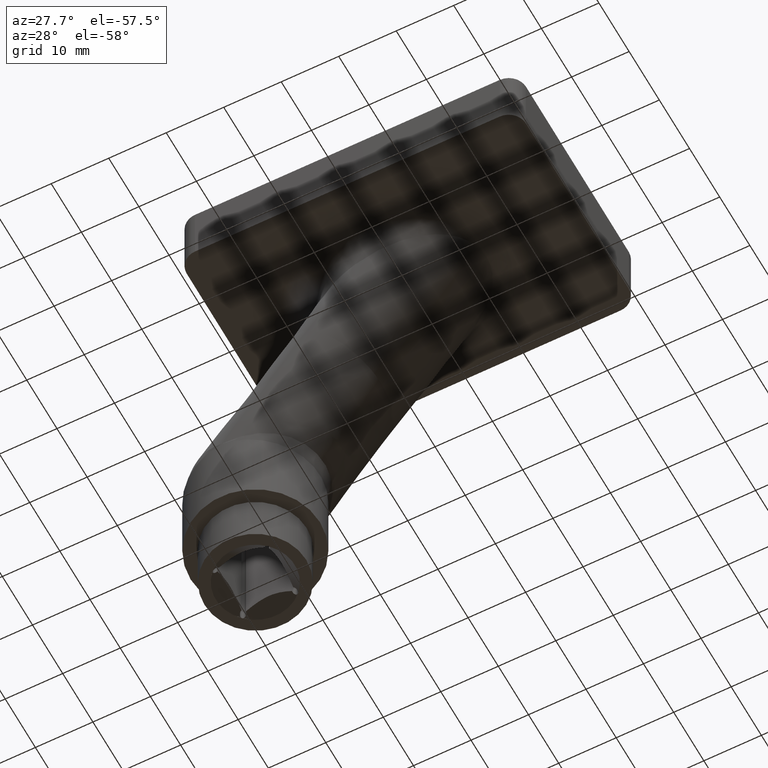
[diagram: clean part render]
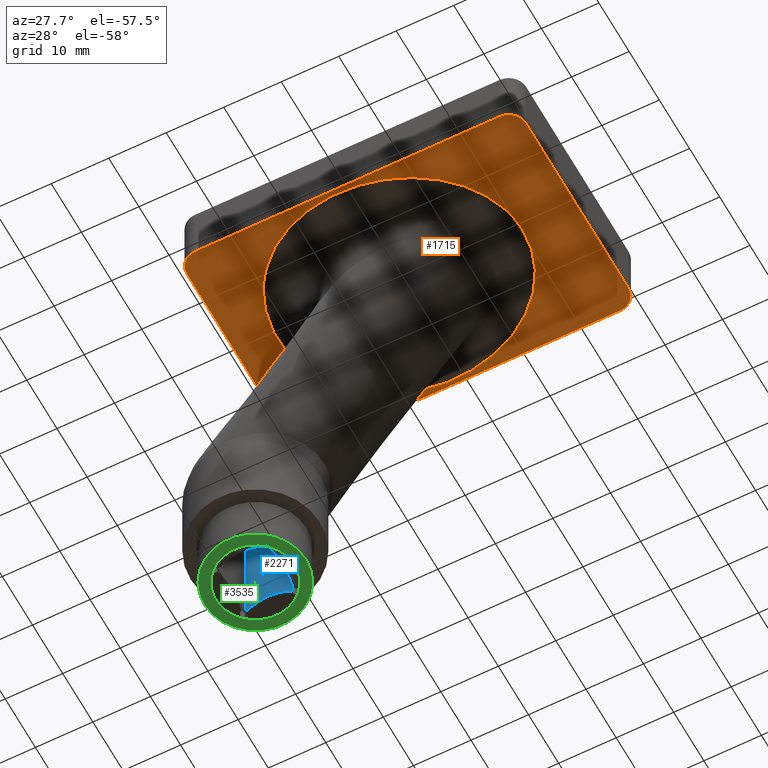
[diagram: same view with three faces highlighted in distinct colors, each labeled with its STEP entity id]
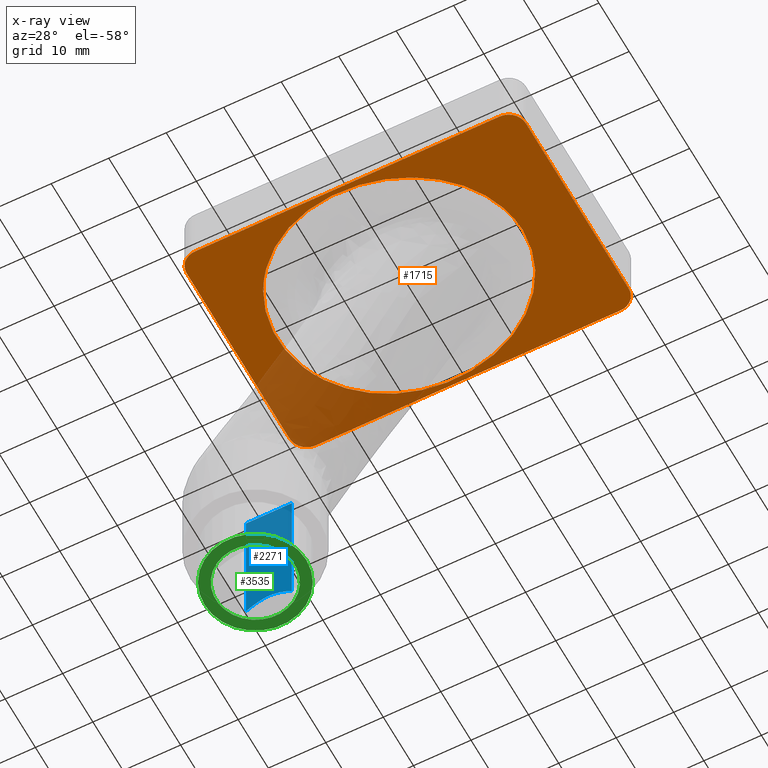
[diagram: x-ray of the same camera — body ghosted, the three highlighted faces saturated]
A machine part, auxiliary view with three faces highlighted in distinct colors.
The next image is the same camera in x-ray (body ghosted, the three faces saturated) — at least one of them is partly hidden behind the body in this view.
Their STEP definitions:

[orange] entity #1715 — the highlighted planar face has unit normal (0, 0, 1).
#12 = ORIENTED_EDGE ( 'NONE', *, *, #6515, .T. ) ;
#51 = DIRECTION ( 'NONE',  ( 0.000000000000000000, -0.000000000000000000, -1.000000000000000000 ) ) ;
#259 = CARTESIAN_POINT ( 'NONE',  ( 26.49999999999999645, -19.99999999999999645, 0.000000000000000000 ) ) ;
#271 = CARTESIAN_POINT ( 'NONE',  ( -17.25574759524515756, 13.22331163500231632, -3.469446951953614189E-15 ) ) ;
#329 = CARTESIAN_POINT ( 'NONE',  ( 19.18132393218330378, 5.246893871989417590, 0.000000000000000000 ) ) ;
#384 = CARTESIAN_POINT ( 'NONE',  ( 1.802502790597663385, 18.96138225805584909, -3.423875456688388738E-31 ) ) ;
#419 = EDGE_CURVE ( 'NONE', #10309, #8626, #13441, .T. ) ;
#426 = DIRECTION ( 'NONE',  ( -1.000000000000000000, -0.000000000000000000, -0.000000000000000000 ) ) ;
#496 = CARTESIAN_POINT ( 'NONE',  ( 5.037011761510285623, 18.25397969890640226, 1.040834085586084730E-14 ) ) ;
#558 = CARTESIAN_POINT ( 'NONE',  ( -8.128933386736870048, -18.44933239786298174, 7.222237291452186122E-31 ) ) ;
#612 = CARTESIAN_POINT ( 'NONE',  ( -15.24593925470038869, -14.98477108379642608, -0.000000000000000000 ) ) ;
#670 = CARTESIAN_POINT ( 'NONE',  ( 11.01450780495575721, -15.47894451652035208, -3.469446951953614978E-15 ) ) ;
#733 = CARTESIAN_POINT ( 'NONE',  ( 17.84436756901563115, -8.301999087841114289, -3.469446951953615767E-15 ) ) ;
#798 = DIRECTION ( 'NONE',  ( 1.000000000000000000, 0.000000000000000000, 0.000000000000000000 ) ) ;
#915 = DIRECTION ( 'NONE',  ( 1.000000000000000000, 0.000000000000000000, 0.000000000000000000 ) ) ;
#950 = ORIENTED_EDGE ( 'NONE', *, *, #17132, .T. ) ;
#958 = CARTESIAN_POINT ( 'NONE',  ( -29.49999999999999645, 17.00000000000000355, 0.000000000000000000 ) ) ;
#1084 = CIRCLE ( 'NONE', #7914, 2.999999999999999112 ) ;
#1608 = CARTESIAN_POINT ( 'NONE',  ( -0.8487407458965864349, 19.23226107187263523, 3.469446951953614978E-15 ) ) ;
#1672 = CARTESIAN_POINT ( 'NONE',  ( 19.37597228934492222, 4.612822983757392414, 0.000000000000000000 ) ) ;
#1715 = ADVANCED_FACE ( 'NONE', ( #5068, #10567 ), #8179, .F. ) ;
#1726 = CARTESIAN_POINT ( 'NONE',  ( 19.80993721011314435, 2.673063860259522695, -3.469446951953612611E-15 ) ) ;
#1782 = CARTESIAN_POINT ( 'NONE',  ( -0.1783191928115404890, 19.19123126171463056, -3.469446951953613400E-15 ) ) ;
#1900 = CARTESIAN_POINT ( 'NONE',  ( -16.78580260807747138, -13.68671043128202136, 3.469446951953614189E-15 ) ) ;
#1951 = CARTESIAN_POINT ( 'NONE',  ( -26.49999999999999645, 20.00000000000000355, 0.000000000000000000 ) ) ;
#1958 = CARTESIAN_POINT ( 'NONE',  ( -21.29873346366283116, -7.149762476909946152, -5.204170427930422072E-15 ) ) ;
#2016 = CARTESIAN_POINT ( 'NONE',  ( -8.776023853299736999, -18.26253320440223504, -3.469446951953614189E-15 ) ) ;
#2070 = CARTESIAN_POINT ( 'NONE',  ( -19.79992980674632364, -10.11638760502446566, 0.000000000000000000 ) ) ;
#2131 = CARTESIAN_POINT ( 'NONE',  ( -22.65414166795012108, -1.334356758547996957, -1.444447458290434334E-31 ) ) ;
#2383 = DIRECTION ( 'NONE',  ( 0.000000000000000000, -0.000000000000000000, -1.000000000000000000 ) ) ;
#2676 = DIRECTION ( 'NONE',  ( 0.000000000000000000, -0.000000000000000000, -1.000000000000000000 ) ) ;
#3017 = CARTESIAN_POINT ( 'NONE',  ( -8.750501567939437564, 18.26737832130535821, 1.387778780781448200E-14 ) ) ;
#3022 = ORIENTED_EDGE ( 'NONE', *, *, #3125, .T. ) ;
#3080 = CARTESIAN_POINT ( 'NONE',  ( 14.19171188980443077, 12.99330440230905737, 0.000000000000000000 ) ) ;
#3125 = EDGE_CURVE ( 'NONE', #6972, #3617, #15167, .T. ) ;
#3137 = CARTESIAN_POINT ( 'NONE',  ( -19.79217995383566731, 10.12027820356646224, 5.204170427930420494E-15 ) ) ;
#3144 = LINE ( 'NONE', #11710, #12807 ) ;
#3193 = CARTESIAN_POINT ( 'NONE',  ( -15.25820686203977594, 14.96915462888833837, 3.423875456688407130E-31 ) ) ;
#3254 = CARTESIAN_POINT ( 'NONE',  ( 9.342470467623066099, 16.46056486205791103, 3.423875456688388738E-31 ) ) ;
#3314 = CARTESIAN_POINT ( 'NONE',  ( -18.17766166060195587, -12.23635294891863445, -5.204170427930420494E-15 ) ) ;
#3370 = CARTESIAN_POINT ( 'NONE',  ( -13.59965306725388245, -16.10599303540016791, 3.250006781153483711E-31 ) ) ;
#3432 = CARTESIAN_POINT ( 'NONE',  ( 10.45117788784755319, -15.83004887775391012, 3.469446951953614189E-15 ) ) ;
#3491 = CARTESIAN_POINT ( 'NONE',  ( 14.18960962472793774, -13.03565257498073571, 5.204170427930433116E-15 ) ) ;
#3550 = CARTESIAN_POINT ( 'NONE',  ( -22.40948946080885662, -3.315648314045179124, -3.469446951953614978E-15 ) ) ;
#3617 = VERTEX_POINT ( 'NONE', #5134 ) ;
#3788 = VECTOR ( 'NONE', #14320, 1000.000000000000000 ) ;
#4247 = B_SPLINE_CURVE_WITH_KNOTS ( 'NONE', 3,
 ( #12708, #5849, #10245, #1726, #6024, #1672, #329, #7384, #15811, #14460, #4508, #11499, #10136, #11670, #12824, #3080, #7498, #4673, #8716, #3254, #17279, #8830, #8886, #496, #14292, #384, #12950, #1782, #1608, #4445, #13007, #15637, #10190, #11440, #3017, #17160, #4617, #14239, #7272, #3193, #17049, #8661, #271, #11557, #5908, #3137, #15696, #7441, #7331, #4562, #14349, #5968, #8777, #11612, #14406, #17216, #2131, #15927, #3550, #16098, #10419, #7791, #1958, #11775, #2070, #9060, #3314, #11889, #1900, #4845, #612, #8941, #3370, #16160, #13122, #2016, #558, #11832, #14573, #11948, #10486, #13183, #4729, #13354, #4785, #11723, #9002, #4959, #9122, #4904, #6193, #3432, #670, #7554, #14515, #3491, #13295, #13240, #6134, #14690, #15978, #17343, #733, #14630, #6312, #10360, #6252, #16036, #7730, #14750, #7607, #17400 ),
 .UNSPECIFIED., .T., .F.,
 ( 4, 2, 2, 2, 2, 2, 2, 2, 2, 2, 2, 2, 2, 2, 2, 2, 2, 2, 2, 2, 2, 2, 2, 2, 2, 2, 2, 2, 2, 2, 2, 2, 2, 2, 2, 2, 2, 2, 2, 2, 2, 2, 2, 2, 2, 2, 2, 2, 2, 2, 2, 2, 2, 2, 2, 4 ),
 ( 0.000000000000000000, 0.002020911401338640941, 0.004041822802677281883, 0.006062734204015923258, 0.007073189904685242210, 0.008083645605354560296, 0.01212546840803183611, 0.01414637980937047401, 0.01616729121070911018, 0.02020911401338637906, 0.02223002541472502216, 0.02425093681606366181, 0.02829275961874094455, 0.03031367102007958766, 0.03233458242141822730, 0.03637640522409550659, 0.03839731662543414970, 0.04041822802677278587, 0.04446005082945007209, 0.04648096223078870826, 0.04850187363212735137, 0.05052278503346600141, 0.05254369643480463759, 0.05658551923748191687, 0.05759597493815123842, 0.05860643063882055998, 0.06062734204015920308, 0.06466916484283646849, 0.06669007624417511160, 0.06871098764551375471, 0.07073189904685238394, 0.07275281044819102705, 0.07679463325086831327, 0.07881554465220695638, 0.08083645605354558561, 0.08285736745488422872, 0.08487827885622287183, 0.08892010165890015805, 0.09094101306023878728, 0.09296192446157743039, 0.09700374726425473049, 0.09902465866559338747, 0.1010455700669320306, 0.1050873928696093029, 0.1071083042709479460, 0.1091292156722865891, 0.1111501270736252323, 0.1131710384749638754, 0.1172128612776411616, 0.1182233169783104831, 0.1192337726789798047, 0.1212546840803184478, 0.1232755954816570909, 0.1252965068829957340, 0.1273174182843343771, 0.1293383296856729925 ),
 .UNSPECIFIED. ) ;
#4365 = ORIENTED_EDGE ( 'NONE', *, *, #4618, .T. ) ;
#4445 = CARTESIAN_POINT ( 'NONE',  ( -2.854710504209263977, 19.27138749281365548, 3.469446951953614189E-15 ) ) ;
#4508 = CARTESIAN_POINT ( 'NONE',  ( 18.29496561918128705, 7.415051191455348523, 5.204170427930422072E-15 ) ) ;
#4562 = CARTESIAN_POINT ( 'NONE',  ( -21.52477295580469629, 6.535261288060140394, 3.469446951953615767E-15 ) ) ;
#4617 = CARTESIAN_POINT ( 'NONE',  ( -11.85704721780153470, 17.08845460195537314, 0.000000000000000000 ) ) ;
#4618 = EDGE_CURVE ( 'NONE', #9970, #8626, #15368, .T. ) ;
#4673 = CARTESIAN_POINT ( 'NONE',  ( 12.15649306997030088, 14.73356300921880724, 0.000000000000000000 ) ) ;
#4729 = CARTESIAN_POINT ( 'NONE',  ( -0.2357380021158265726, -19.19488544232150318, 5.055566104016655264E-31 ) ) ;
#4785 = CARTESIAN_POINT ( 'NONE',  ( 1.748683438357238051, -18.96859669928658221, -3.469446951953603539E-15 ) ) ;
#4845 = CARTESIAN_POINT ( 'NONE',  ( -15.77622147409410402, -14.56866375761230437, 3.469446951953614189E-15 ) ) ;
#4904 = CARTESIAN_POINT ( 'NONE',  ( 8.704030429825523996, -16.78396459821566467, 5.204170427930421283E-15 ) ) ;
#4959 = CARTESIAN_POINT ( 'NONE',  ( 6.869251291074831123, -17.59103901796119018, -6.938893903907231533E-15 ) ) ;
#4971 = ORIENTED_EDGE ( 'NONE', *, *, #16568, .F. ) ;
#5068 = FACE_BOUND ( 'NONE', #8639, .T. ) ;
#5134 = CARTESIAN_POINT ( 'NONE',  ( 29.49999999999999645, 17.00000000000000355, 0.000000000000000000 ) ) ;
#5561 = DIRECTION ( 'NONE',  ( 8.673617379884035472E-17, -1.000000000000000000, 0.000000000000000000 ) ) ;
#5849 = CARTESIAN_POINT ( 'NONE',  ( 20.01259024382805762, 0.6730591445406197693, 0.000000000000000000 ) ) ;
#5908 = CARTESIAN_POINT ( 'NONE',  ( -18.59359503030958294, 11.72823118697855094, 5.204170427930423650E-15 ) ) ;
#5968 = CARTESIAN_POINT ( 'NONE',  ( -21.95342718329411369, 5.263436271669938549, -5.204170427930420494E-15 ) ) ;
#6024 = CARTESIAN_POINT ( 'NONE',  ( 19.69027418138582419, 3.325906789533940699, -0.000000000000000000 ) ) ;
#6134 = CARTESIAN_POINT ( 'NONE',  ( 16.37830413119792539, -10.53754461055345182, 2.888894916581059157E-31 ) ) ;
#6193 = CARTESIAN_POINT ( 'NONE',  ( 9.295940960859413238, -16.48256198024835939, 3.469446951953614189E-15 ) ) ;
#6252 = CARTESIAN_POINT ( 'NONE',  ( 19.37459036147501124, -4.615626362291560092, 5.204170427930419706E-15 ) ) ;
#6312 = CARTESIAN_POINT ( 'NONE',  ( 18.71105615848640369, -6.509380037646070427, -5.204170427930421283E-15 ) ) ;
#6515 = EDGE_CURVE ( 'NONE', #13121, #11543, #1084, .T. ) ;
#6676 = ORIENTED_EDGE ( 'NONE', *, *, #8418, .F. ) ;
#6834 = DIRECTION ( 'NONE',  ( 0.000000000000000000, -0.000000000000000000, -1.000000000000000000 ) ) ;
#6972 = VERTEX_POINT ( 'NONE', #7395 ) ;
#7010 = CARTESIAN_POINT ( 'NONE',  ( 26.50000000000000000, 17.00000000000000355, 0.000000000000000000 ) ) ;
#7119 = CARTESIAN_POINT ( 'NONE',  ( -26.49999999999999289, -16.99999999999999645, 0.000000000000000000 ) ) ;
#7272 = CARTESIAN_POINT ( 'NONE',  ( -14.16855900437081495, 15.74020879608088030, -5.777789833161748722E-31 ) ) ;
#7299 = CARTESIAN_POINT ( 'NONE',  ( -29.49999999999999289, -19.99999999999999645, 0.000000000000000000 ) ) ;
#7303 = VERTEX_POINT ( 'NONE', #12324 ) ;
#7331 = CARTESIAN_POINT ( 'NONE',  ( -21.28160699028295255, 7.158090429882301819, 3.469446951953613400E-15 ) ) ;
#7384 = CARTESIAN_POINT ( 'NONE',  ( 18.83358469475315999, 6.184039409142709331, 0.000000000000000000 ) ) ;
#7395 = CARTESIAN_POINT ( 'NONE',  ( 26.50000000000000000, 20.00000000000000355, 0.000000000000000000 ) ) ;
#7441 = CARTESIAN_POINT ( 'NONE',  ( -21.15209182340150562, 7.465099406425288464, 3.469446951953614189E-15 ) ) ;
#7498 = CARTESIAN_POINT ( 'NONE',  ( 13.69501840676910653, 13.44932262735709294, -0.000000000000000000 ) ) ;
#7554 = CARTESIAN_POINT ( 'NONE',  ( 12.11133259787664862, -14.72485259914834721, -3.469446951953614189E-15 ) ) ;
#7594 = CARTESIAN_POINT ( 'NONE',  ( -26.49999999999999289, -19.99999999999999645, 0.000000000000000000 ) ) ;
#7607 = CARTESIAN_POINT ( 'NONE',  ( 20.01240226575606584, -0.6748179855327099963, 5.777789833161688291E-31 ) ) ;
#7730 = CARTESIAN_POINT ( 'NONE',  ( 19.81127537088795165, -2.661477156598849980, 3.469446951953598017E-15 ) ) ;
#7782 = AXIS2_PLACEMENT_3D ( 'NONE', #13687, #14952, #915 ) ;
#7791 = CARTESIAN_POINT ( 'NONE',  ( -21.54338578192724896, -6.520388827000110687, -3.469446951953615767E-15 ) ) ;
#7914 = AXIS2_PLACEMENT_3D ( 'NONE', #15366, #51, #11161 ) ;
#7960 = LINE ( 'NONE', #16892, #8413 ) ;
#8179 = PLANE ( 'NONE',  #7782 ) ;
#8413 = VECTOR ( 'NONE', #5561, 1000.000000000000000 ) ;
#8418 = EDGE_CURVE ( 'NONE', #9970, #3617, #10988, .T. ) ;
#8517 = DIRECTION ( 'NONE',  ( 1.000000000000000000, 0.000000000000000000, 0.000000000000000000 ) ) ;
#8620 = AXIS2_PLACEMENT_3D ( 'NONE', #9447, #2383, #798 ) ;
#8626 = VERTEX_POINT ( 'NONE', #259 ) ;
#8639 = EDGE_LOOP ( 'NONE', ( #950 ) ) ;
#8661 = CARTESIAN_POINT ( 'NONE',  ( -16.77916368821345117, 13.68533102402647827, -3.469446951953612611E-15 ) ) ;
#8716 = CARTESIAN_POINT ( 'NONE',  ( 11.06592043517484925, 15.48234298542397980, 1.155557966632343088E-30 ) ) ;
#8777 = CARTESIAN_POINT ( 'NONE',  ( -22.12737808373417892, 4.620683517185214306, -3.469446951953622472E-15 ) ) ;
#8830 = CARTESIAN_POINT ( 'NONE',  ( 7.545667667244942756, 17.31740039786564012, 5.204170427930422072E-15 ) ) ;
#8876 = CARTESIAN_POINT ( 'NONE',  ( 29.49999999999999645, 20.00000000000000355, 0.000000000000000000 ) ) ;
#8886 = CARTESIAN_POINT ( 'NONE',  ( 6.924574971257657197, 17.57176283524646720, 1.040834085586083468E-14 ) ) ;
#8941 = CARTESIAN_POINT ( 'NONE',  ( -14.15884239650773502, -15.75229684242042083, 0.000000000000000000 ) ) ;
#9002 = CARTESIAN_POINT ( 'NONE',  ( 4.984400791744038273, -18.26750159892769076, -6.938893903907233111E-15 ) ) ;
#9060 = CARTESIAN_POINT ( 'NONE',  ( -18.60782936379017372, -11.71861030243835522, -3.423875456688370784E-31 ) ) ;
#9122 = CARTESIAN_POINT ( 'NONE',  ( 7.492033717893788136, -17.33777232417586234, 5.204170427930421283E-15 ) ) ;
#9447 = CARTESIAN_POINT ( 'NONE',  ( 26.49999999999999645, -16.99999999999999289, 0.000000000000000000 ) ) ;
#9703 = DIRECTION ( 'NONE',  ( 1.000000000000000000, 0.000000000000000000, 0.000000000000000000 ) ) ;
#9970 = VERTEX_POINT ( 'NONE', #11058 ) ;
#10016 = CIRCLE ( 'NONE', #15085, 2.999999999999999112 ) ;
#10136 = CARTESIAN_POINT ( 'NONE',  ( 16.81305094011355905, 10.01511776551828881, 0.000000000000000000 ) ) ;
#10190 = CARTESIAN_POINT ( 'NONE',  ( -6.803587777780267132, 18.76609105128302346, 3.469446951953615767E-15 ) ) ;
#10245 = CARTESIAN_POINT ( 'NONE',  ( 19.97121657841041653, 1.347839570891224970, -3.469446951953615767E-15 ) ) ;
#10309 = VERTEX_POINT ( 'NONE', #7594 ) ;
#10360 = CARTESIAN_POINT ( 'NONE',  ( 19.17590982609834782, -5.260432318850533306, -5.204170427930422072E-15 ) ) ;
#10419 = CARTESIAN_POINT ( 'NONE',  ( -21.95916871762797840, -5.253229604945508946, -3.469446951953613400E-15 ) ) ;
#10486 = CARTESIAN_POINT ( 'NONE',  ( -2.905003448689253531, -19.26955221333398782, -1.387778780781458297E-14 ) ) ;
#10567 = FACE_OUTER_BOUND ( 'NONE', #11452, .T. ) ;
#10988 = LINE ( 'NONE', #8876, #14261 ) ;
#11058 = CARTESIAN_POINT ( 'NONE',  ( 29.49999999999999645, -16.99999999999999289, 0.000000000000000000 ) ) ;
#11161 = DIRECTION ( 'NONE',  ( 1.000000000000000000, 0.000000000000000000, 0.000000000000000000 ) ) ;
#11440 = CARTESIAN_POINT ( 'NONE',  ( -8.104306242534329741, 18.45354457161061390, 3.469446951953614189E-15 ) ) ;
#11452 = EDGE_LOOP ( 'NONE', ( #6676, #4365, #13236, #16609, #4971, #12, #12835, #3022 ) ) ;
#11499 = CARTESIAN_POINT ( 'NONE',  ( 17.53804818635100560, 8.909769567557933811, 5.204170427930421283E-15 ) ) ;
#11543 = VERTEX_POINT ( 'NONE', #1951 ) ;
#11557 = CARTESIAN_POINT ( 'NONE',  ( -18.16179229064365330, 12.24645112726504159, -3.469446951953615767E-15 ) ) ;
#11612 = CARTESIAN_POINT ( 'NONE',  ( -22.54573341566602096, 2.674882909008491350, -3.469446951953605511E-15 ) ) ;
#11670 = CARTESIAN_POINT ( 'NONE',  ( 15.56812993101553566, 11.55397873959219268, 0.000000000000000000 ) ) ;
#11710 = CARTESIAN_POINT ( 'NONE',  ( -29.49999999999999645, 20.00000000000000355, 0.000000000000000000 ) ) ;
#11723 = CARTESIAN_POINT ( 'NONE',  ( 3.703907355932424039, -18.61030196343656584, -3.469446951953614189E-15 ) ) ;
#11775 = CARTESIAN_POINT ( 'NONE',  ( -20.47312819043015608, -8.974462389260507322, -5.204170427930421283E-15 ) ) ;
#11832 = CARTESIAN_POINT ( 'NONE',  ( -6.835063868554485111, -18.76137622254659121, 8.559688641720927179E-31 ) ) ;
#11889 = CARTESIAN_POINT ( 'NONE',  ( -17.26630055368678285, -13.22046659875033825, -5.204170427930421283E-15 ) ) ;
#11948 = CARTESIAN_POINT ( 'NONE',  ( -4.224479732083636030, -19.18368245871317157, 3.469446951953525048E-15 ) ) ;
#12324 = CARTESIAN_POINT ( 'NONE',  ( 20.01249625479205818, -0.0008794204960473978256, 0.000000000000000000 ) ) ;
#12708 = CARTESIAN_POINT ( 'NONE',  ( 20.01249625479206173, -0.0008794204960475035353, 2.888894916580854217E-31 ) ) ;
#12807 = VECTOR ( 'NONE', #426, 1000.000000000000000 ) ;
#12824 = CARTESIAN_POINT ( 'NONE',  ( 15.12665937873019395, 12.04687585781659287, -0.000000000000000000 ) ) ;
#12835 = ORIENTED_EDGE ( 'NONE', *, *, #16359, .F. ) ;
#12950 = CARTESIAN_POINT ( 'NONE',  ( 1.145897975334389640, 19.05579658287193467, -3.469446951953613400E-15 ) ) ;
#13007 = CARTESIAN_POINT ( 'NONE',  ( -4.180117291731900053, 19.18729551083243479, 0.000000000000000000 ) ) ;
#13121 = VERTEX_POINT ( 'NONE', #958 ) ;
#13122 = CARTESIAN_POINT ( 'NONE',  ( -10.67107842840536946, -17.61952165026855255, -3.469446951953614189E-15 ) ) ;
#13183 = CARTESIAN_POINT ( 'NONE',  ( -0.9072363724584378009, -19.23448887584937950, -1.387778780781452144E-14 ) ) ;
#13214 = EDGE_CURVE ( 'NONE', #10309, #15488, #10016, .T. ) ;
#13236 = ORIENTED_EDGE ( 'NONE', *, *, #419, .F. ) ;
#13240 = CARTESIAN_POINT ( 'NONE',  ( 16.17482430992993869, -10.80174239403848624, 0.000000000000000000 ) ) ;
#13295 = CARTESIAN_POINT ( 'NONE',  ( 15.12645950999159439, -12.09378304886523203, 0.000000000000000000 ) ) ;
#13354 = CARTESIAN_POINT ( 'NONE',  ( 1.091153722399145209, -19.06185808446930707, 5.135813185032446481E-31 ) ) ;
#13441 = LINE ( 'NONE', #7299, #3788 ) ;
#13687 = CARTESIAN_POINT ( 'NONE',  ( 0.000000000000000000, 0.000000000000000000, 0.000000000000000000 ) ) ;
#14239 = CARTESIAN_POINT ( 'NONE',  ( -13.59883364874932532, 16.10131626900895796, 0.000000000000000000 ) ) ;
#14261 = VECTOR ( 'NONE', #17693, 1000.000000000000000 ) ;
#14292 = CARTESIAN_POINT ( 'NONE',  ( 3.756093236521085288, 18.59944195774702180, 0.000000000000000000 ) ) ;
#14320 = DIRECTION ( 'NONE',  ( 1.000000000000000000, 0.000000000000000000, 0.000000000000000000 ) ) ;
#14349 = CARTESIAN_POINT ( 'NONE',  ( -21.63873056346839263, 6.218451581440977982, -5.204170427930422072E-15 ) ) ;
#14406 = CARTESIAN_POINT ( 'NONE',  ( -22.68791368157156541, 1.354508512987127489, 3.469446951953598806E-15 ) ) ;
#14460 = CARTESIAN_POINT ( 'NONE',  ( 18.43914588633452922, 7.109494042467683350, -2.739100365350716245E-30 ) ) ;
#14515 = CARTESIAN_POINT ( 'NONE',  ( 12.64697168910241665, -14.32004303414327495, 5.204170427930407873E-15 ) ) ;
#14573 = CARTESIAN_POINT ( 'NONE',  ( -6.184795414104144129, -18.88795296907057875, 3.469446951953636671E-15 ) ) ;
#14630 = CARTESIAN_POINT ( 'NONE',  ( 18.44413321669804517, -7.117400298144795023, -3.469446951953614189E-15 ) ) ;
#14690 = CARTESIAN_POINT ( 'NONE',  ( 16.77241555345485224, -9.997137891519914277, 1.027162637006467401E-30 ) ) ;
#14750 = CARTESIAN_POINT ( 'NONE',  ( 19.97156297238658240, -1.339802771174343654, 3.469446951953597623E-15 ) ) ;
#14952 = DIRECTION ( 'NONE',  ( -0.000000000000000000, 0.000000000000000000, 1.000000000000000000 ) ) ;
#15085 = AXIS2_PLACEMENT_3D ( 'NONE', #7119, #2676, #8517 ) ;
#15167 = CIRCLE ( 'NONE', #17866, 2.999999999999999112 ) ;
#15366 = CARTESIAN_POINT ( 'NONE',  ( -26.49999999999999645, 17.00000000000000355, 0.000000000000000000 ) ) ;
#15368 = CIRCLE ( 'NONE', #8620, 2.999999999999999112 ) ;
#15488 = VERTEX_POINT ( 'NONE', #17379 ) ;
#15637 = CARTESIAN_POINT ( 'NONE',  ( -6.150011894375841059, 18.89259886713325898, 0.000000000000000000 ) ) ;
#15696 = CARTESIAN_POINT ( 'NONE',  ( -20.46543835572193260, 8.978440279444219740, 3.469446951953614189E-15 ) ) ;
#15811 = CARTESIAN_POINT ( 'NONE',  ( 18.70835916686747780, 6.494089949875255563, -2.744450170751808288E-30 ) ) ;
#15927 = CARTESIAN_POINT ( 'NONE',  ( -22.51405379972033671, -2.660108824113103676, 3.423875456688370784E-31 ) ) ;
#15978 = CARTESIAN_POINT ( 'NONE',  ( 16.96349999263718189, -9.720187980252497084, 5.204170427930422072E-15 ) ) ;
#16036 = CARTESIAN_POINT ( 'NONE',  ( 19.69181889770427674, -3.316632921726338168, 5.204170427930420494E-15 ) ) ;
#16098 = CARTESIAN_POINT ( 'NONE',  ( -22.13204793101692758, -4.612208919380940131, -3.469446951953614189E-15 ) ) ;
#16160 = CARTESIAN_POINT ( 'NONE',  ( -11.87775699512610572, -17.08186921640050571, -2.704861610783841589E-29 ) ) ;
#16359 = EDGE_CURVE ( 'NONE', #6972, #11543, #3144, .T. ) ;
#16568 = EDGE_CURVE ( 'NONE', #13121, #15488, #7960, .T. ) ;
#16609 = ORIENTED_EDGE ( 'NONE', *, *, #13214, .T. ) ;
#16892 = CARTESIAN_POINT ( 'NONE',  ( -29.49999999999999645, 20.00000000000000355, 0.000000000000000000 ) ) ;
#17049 = CARTESIAN_POINT ( 'NONE',  ( -15.78039518208496794, 14.55825460643133340, -3.469446951953614189E-15 ) ) ;
#17132 = EDGE_CURVE ( 'NONE', #7303, #7303, #4247, .T. ) ;
#17160 = CARTESIAN_POINT ( 'NONE',  ( -10.64356525686504185, 17.62676560951882365, 1.387778780781445676E-14 ) ) ;
#17216 = CARTESIAN_POINT ( 'NONE',  ( -22.68955307447685854, -0.6619235971975805377, 3.469446951953605906E-15 ) ) ;
#17279 = CARTESIAN_POINT ( 'NONE',  ( 8.753261507622539739, 16.76227041985914568, 5.204170427930423650E-15 ) ) ;
#17343 = CARTESIAN_POINT ( 'NONE',  ( 17.51151502512621150, -8.878572924612848638, 5.204170427930421283E-15 ) ) ;
#17379 = CARTESIAN_POINT ( 'NONE',  ( -29.49999999999999289, -17.00000000000000000, 0.000000000000000000 ) ) ;
#17400 = CARTESIAN_POINT ( 'NONE',  ( 20.01249625479206173, -0.0008794204960475035353, 2.888894916580854217E-31 ) ) ;
#17693 = DIRECTION ( 'NONE',  ( -0.000000000000000000, 1.000000000000000000, -0.000000000000000000 ) ) ;
#17866 = AXIS2_PLACEMENT_3D ( 'NONE', #7010, #6834, #9703 ) ;

[blue] entity #2271 — the highlighted planar face has unit normal (0, -1, 0).
#389 = ORIENTED_EDGE ( 'NONE', *, *, #975, .F. ) ;
#975 = EDGE_CURVE ( 'NONE', #12867, #9622, #9710, .T. ) ;
#980 = CARTESIAN_POINT ( 'NONE',  ( -22.79888496657452279, 4.500000000000000000, -65.95826789495524167 ) ) ;
#1048 = CARTESIAN_POINT ( 'NONE',  ( -30.50000000000000711, 4.499999999999999112, -66.15683625871720608 ) ) ;
#1074 = LINE ( 'NONE', #12672, #9861 ) ;
#1115 = CARTESIAN_POINT ( 'NONE',  ( -27.22017388820816208, 4.500000000000000000, -64.68014750293195902 ) ) ;
#1302 = CARTESIAN_POINT ( 'NONE',  ( -30.50000000000000711, 4.499999999999999112, -66.15683625871720608 ) ) ;
#1344 = CARTESIAN_POINT ( 'NONE',  ( -22.50000000000000711, 4.499999999999999112, -41.00000000000000000 ) ) ;
#2271 = ADVANCED_FACE ( 'NONE', ( #16017 ), #3902, .T. ) ;
#2321 = CARTESIAN_POINT ( 'NONE',  ( -22.50000000000001066, 4.500000000000004441, -66.15683625871722029 ) ) ;
#2682 = EDGE_CURVE ( 'NONE', #12867, #4519, #6593, .T. ) ;
#3335 = DIRECTION ( 'NONE',  ( 1.000000000000000000, -0.000000000000000000, -0.000000000000000000 ) ) ;
#3902 = PLANE ( 'NONE',  #8485 ) ;
#4263 = DIRECTION ( 'NONE',  ( -0.000000000000000000, -0.000000000000000000, 1.000000000000000000 ) ) ;
#4519 = VERTEX_POINT ( 'NONE', #6264 ) ;
#5855 = ORIENTED_EDGE ( 'NONE', *, *, #16561, .T. ) ;
#6264 = CARTESIAN_POINT ( 'NONE',  ( -22.50000000000001066, 4.500000000000004441, -66.15683625871722029 ) ) ;
#6503 = CARTESIAN_POINT ( 'NONE',  ( -27.93171504531904503, 4.499999999999999112, -64.84561218851740705 ) ) ;
#6530 = VERTEX_POINT ( 'NONE', #1344 ) ;
#6593 = B_SPLINE_CURVE_WITH_KNOTS ( 'NONE', 3,
 ( #1048, #9325, #12275, #16551, #6503, #1115, #16489, #10812, #6694, #8182, #17977, #9382, #12213, #8113, #980, #2321 ),
 .UNSPECIFIED., .F., .F.,
 ( 4, 2, 2, 2, 2, 2, 2, 4 ),
 ( 0.005436506089160069756, 0.007597276169322701722, 0.008677661209404026812, 0.009758046249485350168, 0.01083843128956667526, 0.01191881632964799861, 0.01299920136972932197, 0.01407958640981064533 ),
 .UNSPECIFIED. ) ;
#6694 = CARTESIAN_POINT ( 'NONE',  ( -25.77200503447989988, 4.499999999999999112, -64.68160984082913956 ) ) ;
#7391 = ORIENTED_EDGE ( 'NONE', *, *, #2682, .T. ) ;
#8113 = CARTESIAN_POINT ( 'NONE',  ( -23.10336157524787382, 4.500000000000000888, -65.76812633962509835 ) ) ;
#8182 = CARTESIAN_POINT ( 'NONE',  ( -25.06615294182854825, 4.500000000000000000, -64.84646944479852948 ) ) ;
#8485 = AXIS2_PLACEMENT_3D ( 'NONE', #17937, #10967, #15541 ) ;
#8611 = CARTESIAN_POINT ( 'NONE',  ( -30.50000000000000711, 4.499999999999999112, -101.0315800540038396 ) ) ;
#9054 = LINE ( 'NONE', #9661, #16733 ) ;
#9241 = EDGE_CURVE ( 'NONE', #9622, #6530, #1074, .T. ) ;
#9325 = CARTESIAN_POINT ( 'NONE',  ( -29.89875319160037748, 4.499999999999999112, -65.75738962100449214 ) ) ;
#9382 = CARTESIAN_POINT ( 'NONE',  ( -24.05154407156038587, 4.500000000000000000, -65.24999013304301343 ) ) ;
#9622 = VERTEX_POINT ( 'NONE', #15400 ) ;
#9661 = CARTESIAN_POINT ( 'NONE',  ( -22.50000000000000711, 4.499999999999999112, -101.0315800540038396 ) ) ;
#9710 = LINE ( 'NONE', #8611, #11491 ) ;
#9861 = VECTOR ( 'NONE', #3335, 1000.000000000000000 ) ;
#10812 = CARTESIAN_POINT ( 'NONE',  ( -26.13857558787421809, 4.500000000000000000, -64.63607656205905982 ) ) ;
#10967 = DIRECTION ( 'NONE',  ( 0.000000000000000000, -1.000000000000000000, -0.000000000000000000 ) ) ;
#11491 = VECTOR ( 'NONE', #4263, 1000.000000000000000 ) ;
#12213 = CARTESIAN_POINT ( 'NONE',  ( -23.72972271411647327, 4.499999999999999112, -65.41407760113476400 ) ) ;
#12275 = CARTESIAN_POINT ( 'NONE',  ( -29.26892737583048643, 4.499999999999998224, -65.38535547606734610 ) ) ;
#12672 = CARTESIAN_POINT ( 'NONE',  ( -22.50000000000000711, 4.499999999999999112, -41.00000000000000000 ) ) ;
#12674 = ORIENTED_EDGE ( 'NONE', *, *, #9241, .F. ) ;
#12867 = VERTEX_POINT ( 'NONE', #1302 ) ;
#13950 = DIRECTION ( 'NONE',  ( -0.000000000000000000, -0.000000000000000000, 1.000000000000000000 ) ) ;
#15400 = CARTESIAN_POINT ( 'NONE',  ( -30.50000000000000711, 4.499999999999999112, -41.00000000000000000 ) ) ;
#15541 = DIRECTION ( 'NONE',  ( 0.000000000000000000, 0.000000000000000000, -1.000000000000000000 ) ) ;
#15682 = EDGE_LOOP ( 'NONE', ( #389, #7391, #5855, #12674 ) ) ;
#16017 = FACE_OUTER_BOUND ( 'NONE', #15682, .T. ) ;
#16489 = CARTESIAN_POINT ( 'NONE',  ( -26.86048769065884301, 4.499999999999999112, -64.63600142533013582 ) ) ;
#16551 = CARTESIAN_POINT ( 'NONE',  ( -28.27307158076159155, 4.500000000000000000, -64.96339581073524982 ) ) ;
#16561 = EDGE_CURVE ( 'NONE', #4519, #6530, #9054, .T. ) ;
#16733 = VECTOR ( 'NONE', #13950, 1000.000000000000000 ) ;
#17937 = CARTESIAN_POINT ( 'NONE',  ( -22.50000000000000711, 4.499999999999999112, -101.0315800540038396 ) ) ;
#17977 = CARTESIAN_POINT ( 'NONE',  ( -24.72329756892010622, 4.499999999999999112, -64.96452026264996960 ) ) ;

[green] entity #3535 — the highlighted planar face has unit normal (0, 0, -1).
#187 = VERTEX_POINT ( 'NONE', #5149 ) ;
#504 = CARTESIAN_POINT ( 'NONE',  ( -26.50000000000001421, 0.000000000000000000, -67.00000000000000000 ) ) ;
#1210 = DIRECTION ( 'NONE',  ( -0.000000000000000000, -0.000000000000000000, 1.000000000000000000 ) ) ;
#1243 = VERTEX_POINT ( 'NONE', #7678 ) ;
#1955 = CARTESIAN_POINT ( 'NONE',  ( -31.35355339059328728, 4.853553390593284611, -67.00000000000000000 ) ) ;
#2213 = EDGE_CURVE ( 'NONE', #3430, #16955, #2642, .T. ) ;
#2642 = CIRCLE ( 'NONE', #17518, 6.863961030678940034 ) ;
#2650 = EDGE_CURVE ( 'NONE', #4861, #4861, #3319, .T. ) ;
#3199 = DIRECTION ( 'NONE',  ( -0.000000000000000000, -0.000000000000000000, 1.000000000000000000 ) ) ;
#3319 = CIRCLE ( 'NONE', #17166, 8.850000000000013856 ) ;
#3323 = DIRECTION ( 'NONE',  ( -1.000000000000000000, 0.000000000000000000, 0.000000000000000000 ) ) ;
#3430 = VERTEX_POINT ( 'NONE', #1955 ) ;
#3535 = ADVANCED_FACE ( 'NONE', ( #11460, #11678 ), #4779, .T. ) ;
#3620 = CIRCLE ( 'NONE', #4902, 6.863961030678936481 ) ;
#3643 = ORIENTED_EDGE ( 'NONE', *, *, #10956, .T. ) ;
#3997 = ORIENTED_EDGE ( 'NONE', *, *, #9018, .T. ) ;
#4026 = DIRECTION ( 'NONE',  ( -3.469446951953611231E-16, -0.000000000000000000, -1.000000000000000000 ) ) ;
#4722 = DIRECTION ( 'NONE',  ( -1.000000000000000000, 0.000000000000000000, -0.000000000000000000 ) ) ;
#4779 = PLANE ( 'NONE',  #5806 ) ;
#4861 = VERTEX_POINT ( 'NONE', #6549 ) ;
#4902 = AXIS2_PLACEMENT_3D ( 'NONE', #12846, #5811, #17127 ) ;
#5149 = CARTESIAN_POINT ( 'NONE',  ( -31.35355339059328728, -4.853553390593285499, -67.00000000000000000 ) ) ;
#5296 = DIRECTION ( 'NONE',  ( 0.000000000000000000, 0.000000000000000000, -1.000000000000000000 ) ) ;
#5806 = AXIS2_PLACEMENT_3D ( 'NONE', #6131, #15809, #4722 ) ;
#5811 = DIRECTION ( 'NONE',  ( -0.000000000000000000, -0.000000000000000000, 1.000000000000000000 ) ) ;
#6131 = CARTESIAN_POINT ( 'NONE',  ( -26.50000000000000711, 0.000000000000000000, -67.00000000000000000 ) ) ;
#6549 = CARTESIAN_POINT ( 'NONE',  ( -35.35000000000002274, 0.000000000000000000, -67.00000000000000000 ) ) ;
#6764 = DIRECTION ( 'NONE',  ( -1.000000000000000000, 0.000000000000000000, 0.000000000000000000 ) ) ;
#6860 = DIRECTION ( 'NONE',  ( -1.000000000000000000, 0.000000000000000000, 0.000000000000000000 ) ) ;
#6920 = DIRECTION ( 'NONE',  ( -1.000000000000000000, 8.881784197001251337E-16, 0.000000000000000000 ) ) ;
#7678 = CARTESIAN_POINT ( 'NONE',  ( -21.64644660940672694, -4.853553390593279282, -67.00000000000000000 ) ) ;
#9018 = EDGE_CURVE ( 'NONE', #187, #1243, #16631, .T. ) ;
#10956 = EDGE_CURVE ( 'NONE', #1243, #16955, #16381, .T. ) ;
#11460 = FACE_OUTER_BOUND ( 'NONE', #11915, .T. ) ;
#11485 = AXIS2_PLACEMENT_3D ( 'NONE', #504, #3199, #3323 ) ;
#11678 = FACE_BOUND ( 'NONE', #16138, .T. ) ;
#11915 = EDGE_LOOP ( 'NONE', ( #16618 ) ) ;
#12846 = CARTESIAN_POINT ( 'NONE',  ( -26.50000000000001421, 0.000000000000000000, -67.00000000000000000 ) ) ;
#13205 = ORIENTED_EDGE ( 'NONE', *, *, #13715, .T. ) ;
#13258 = CARTESIAN_POINT ( 'NONE',  ( -21.64644660940672694, 4.853553390593278394, -67.00000000000000000 ) ) ;
#13715 = EDGE_CURVE ( 'NONE', #3430, #187, #3620, .T. ) ;
#13781 = CARTESIAN_POINT ( 'NONE',  ( -26.50000000000001421, 0.000000000000000000, -67.00000000000000000 ) ) ;
#15224 = ORIENTED_EDGE ( 'NONE', *, *, #2213, .F. ) ;
#15228 = CARTESIAN_POINT ( 'NONE',  ( -26.50000000000001066, 0.000000000000000000, -67.00000000000000000 ) ) ;
#15809 = DIRECTION ( 'NONE',  ( 0.000000000000000000, 0.000000000000000000, -1.000000000000000000 ) ) ;
#16138 = EDGE_LOOP ( 'NONE', ( #13205, #3997, #3643, #15224 ) ) ;
#16381 = CIRCLE ( 'NONE', #11485, 6.863961030678936481 ) ;
#16618 = ORIENTED_EDGE ( 'NONE', *, *, #2650, .T. ) ;
#16631 = CIRCLE ( 'NONE', #16853, 6.863961030678936481 ) ;
#16853 = AXIS2_PLACEMENT_3D ( 'NONE', #13781, #1210, #6920 ) ;
#16955 = VERTEX_POINT ( 'NONE', #13258 ) ;
#17127 = DIRECTION ( 'NONE',  ( -1.000000000000000000, 0.000000000000000000, 0.000000000000000000 ) ) ;
#17166 = AXIS2_PLACEMENT_3D ( 'NONE', #17845, #5296, #6764 ) ;
#17518 = AXIS2_PLACEMENT_3D ( 'NONE', #15228, #4026, #6860 ) ;
#17845 = CARTESIAN_POINT ( 'NONE',  ( -26.50000000000000711, 0.000000000000000000, -67.00000000000000000 ) ) ;